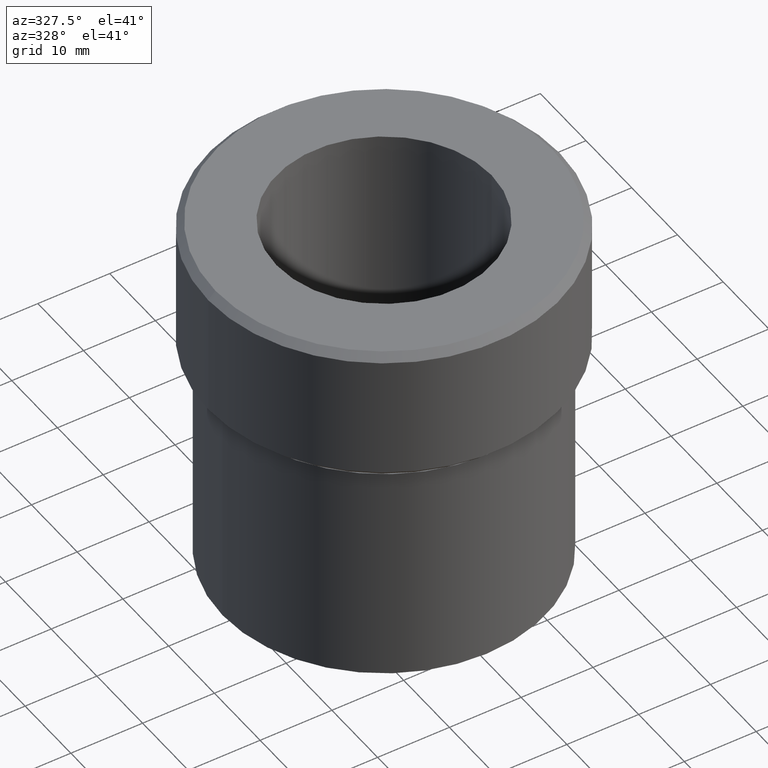
[diagram: clean part render]
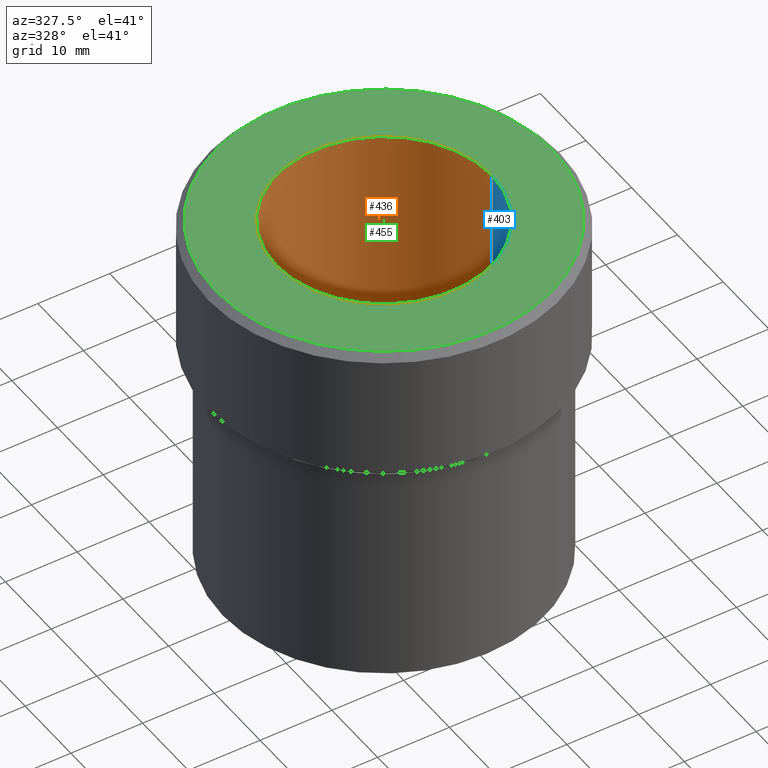
[diagram: same view with three faces highlighted in distinct colors, each labeled with its STEP entity id]
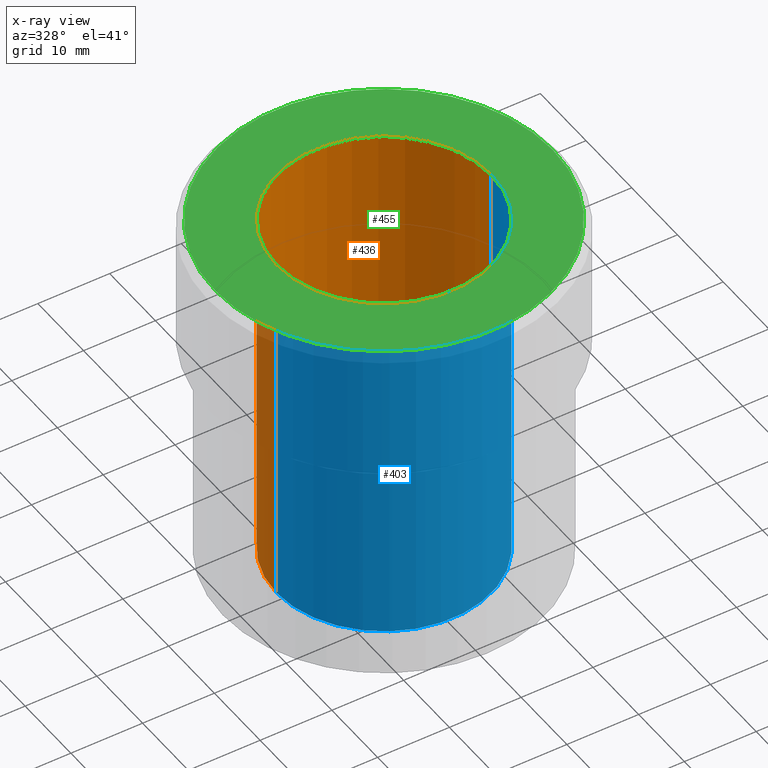
[diagram: x-ray of the same camera — body ghosted, the three highlighted faces saturated]
A machine part, auxiliary view with three faces highlighted in distinct colors.
The next image is the same camera in x-ray (body ghosted, the three faces saturated) — at least one of them is partly hidden behind the body in this view.
Their STEP definitions:

[orange] entity #436 — the highlighted cylindrical surface (partial cylindrical patch) has radius 15 mm, axis along (-0, -0, 1).
#11 = DIRECTION ( 'NONE',  ( -0.000000000000000000, -0.000000000000000000, 1.000000000000000000 ) ) ;
#16 = EDGE_CURVE ( 'NONE', #229, #299, #208, .T. ) ;
#20 = CARTESIAN_POINT ( 'NONE',  ( -15.00000000000000000, 1.836970198721029589E-15, -65.00000000000000000 ) ) ;
#24 = VECTOR ( 'NONE', #344, 1000.000000000000000 ) ;
#47 = AXIS2_PLACEMENT_3D ( 'NONE', #164, #200, #236 ) ;
#92 = CARTESIAN_POINT ( 'NONE',  ( 15.00000000000000000, 0.000000000000000000, 0.000000000000000000 ) ) ;
#100 = VERTEX_POINT ( 'NONE', #196 ) ;
#106 = CYLINDRICAL_SURFACE ( 'NONE', #445, 15.00000000000000000 ) ;
#126 = DIRECTION ( 'NONE',  ( -0.000000000000000000, -0.000000000000000000, 1.000000000000000000 ) ) ;
#157 = ORIENTED_EDGE ( 'NONE', *, *, #494, .F. ) ;
#158 = EDGE_CURVE ( 'NONE', #299, #100, #481, .T. ) ;
#164 = CARTESIAN_POINT ( 'NONE',  ( 0.000000000000000000, 0.000000000000000000, 0.000000000000000000 ) ) ;
#175 = ORIENTED_EDGE ( 'NONE', *, *, #514, .T. ) ;
#196 = CARTESIAN_POINT ( 'NONE',  ( -15.00000000000000000, 1.836970198721029589E-15, 0.000000000000000000 ) ) ;
#200 = DIRECTION ( 'NONE',  ( -0.000000000000000000, -0.000000000000000000, 1.000000000000000000 ) ) ;
#208 = LINE ( 'NONE', #496, #284 ) ;
#229 = VERTEX_POINT ( 'NONE', #488 ) ;
#230 = DIRECTION ( 'NONE',  ( -1.000000000000000000, 0.000000000000000000, 0.000000000000000000 ) ) ;
#236 = DIRECTION ( 'NONE',  ( 1.000000000000000000, 0.000000000000000000, 0.000000000000000000 ) ) ;
#258 = DIRECTION ( 'NONE',  ( 0.000000000000000000, 0.000000000000000000, -1.000000000000000000 ) ) ;
#264 = CARTESIAN_POINT ( 'NONE',  ( 0.000000000000000000, 0.000000000000000000, -51.00000000000000000 ) ) ;
#284 = VECTOR ( 'NONE', #126, 1000.000000000000000 ) ;
#299 = VERTEX_POINT ( 'NONE', #92 ) ;
#303 = VERTEX_POINT ( 'NONE', #339 ) ;
#329 = CIRCLE ( 'NONE', #473, 15.00000000000000000 ) ;
#337 = ORIENTED_EDGE ( 'NONE', *, *, #158, .T. ) ;
#339 = CARTESIAN_POINT ( 'NONE',  ( -15.00000000000000000, 1.836970198721029589E-15, -51.00000000000000000 ) ) ;
#344 = DIRECTION ( 'NONE',  ( -0.000000000000000000, -0.000000000000000000, 1.000000000000000000 ) ) ;
#420 = CARTESIAN_POINT ( 'NONE',  ( 0.000000000000000000, 0.000000000000000000, -65.00000000000000000 ) ) ;
#436 = ADVANCED_FACE ( 'NONE', ( #501 ), #106, .F. ) ;
#437 = LINE ( 'NONE', #20, #24 ) ;
#445 = AXIS2_PLACEMENT_3D ( 'NONE', #420, #11, #505 ) ;
#467 = ORIENTED_EDGE ( 'NONE', *, *, #16, .T. ) ;
#473 = AXIS2_PLACEMENT_3D ( 'NONE', #264, #258, #230 ) ;
#481 = CIRCLE ( 'NONE', #47, 15.00000000000000000 ) ;
#488 = CARTESIAN_POINT ( 'NONE',  ( 15.00000000000000000, 0.000000000000000000, -51.00000000000000000 ) ) ;
#491 = EDGE_LOOP ( 'NONE', ( #157, #175, #467, #337 ) ) ;
#494 = EDGE_CURVE ( 'NONE', #303, #100, #437, .T. ) ;
#496 = CARTESIAN_POINT ( 'NONE',  ( 15.00000000000000000, 0.000000000000000000, -65.00000000000000000 ) ) ;
#501 = FACE_OUTER_BOUND ( 'NONE', #491, .T. ) ;
#505 = DIRECTION ( 'NONE',  ( 1.000000000000000000, 0.000000000000000000, 0.000000000000000000 ) ) ;
#514 = EDGE_CURVE ( 'NONE', #303, #229, #329, .T. ) ;

[blue] entity #403 — the highlighted cylindrical surface (partial cylindrical patch) has radius 15 mm, axis along (-0, -0, 1).
#16 = EDGE_CURVE ( 'NONE', #229, #299, #208, .T. ) ;
#20 = CARTESIAN_POINT ( 'NONE',  ( -15.00000000000000000, 1.836970198721029589E-15, -65.00000000000000000 ) ) ;
#24 = VECTOR ( 'NONE', #344, 1000.000000000000000 ) ;
#55 = CARTESIAN_POINT ( 'NONE',  ( 0.000000000000000000, 0.000000000000000000, -51.00000000000000000 ) ) ;
#62 = DIRECTION ( 'NONE',  ( 1.000000000000000000, 0.000000000000000000, 0.000000000000000000 ) ) ;
#63 = EDGE_LOOP ( 'NONE', ( #384, #105, #107, #396 ) ) ;
#76 = CIRCLE ( 'NONE', #177, 15.00000000000000000 ) ;
#92 = CARTESIAN_POINT ( 'NONE',  ( 15.00000000000000000, 0.000000000000000000, 0.000000000000000000 ) ) ;
#100 = VERTEX_POINT ( 'NONE', #196 ) ;
#105 = ORIENTED_EDGE ( 'NONE', *, *, #494, .T. ) ;
#107 = ORIENTED_EDGE ( 'NONE', *, *, #531, .T. ) ;
#126 = DIRECTION ( 'NONE',  ( -0.000000000000000000, -0.000000000000000000, 1.000000000000000000 ) ) ;
#152 = CARTESIAN_POINT ( 'NONE',  ( 0.000000000000000000, 0.000000000000000000, -65.00000000000000000 ) ) ;
#163 = AXIS2_PLACEMENT_3D ( 'NONE', #152, #269, #390 ) ;
#177 = AXIS2_PLACEMENT_3D ( 'NONE', #55, #220, #432 ) ;
#196 = CARTESIAN_POINT ( 'NONE',  ( -15.00000000000000000, 1.836970198721029589E-15, 0.000000000000000000 ) ) ;
#208 = LINE ( 'NONE', #496, #284 ) ;
#220 = DIRECTION ( 'NONE',  ( 0.000000000000000000, 0.000000000000000000, -1.000000000000000000 ) ) ;
#229 = VERTEX_POINT ( 'NONE', #488 ) ;
#269 = DIRECTION ( 'NONE',  ( -0.000000000000000000, -0.000000000000000000, 1.000000000000000000 ) ) ;
#272 = CARTESIAN_POINT ( 'NONE',  ( 0.000000000000000000, 0.000000000000000000, 0.000000000000000000 ) ) ;
#281 = CIRCLE ( 'NONE', #298, 15.00000000000000000 ) ;
#284 = VECTOR ( 'NONE', #126, 1000.000000000000000 ) ;
#298 = AXIS2_PLACEMENT_3D ( 'NONE', #272, #512, #62 ) ;
#299 = VERTEX_POINT ( 'NONE', #92 ) ;
#303 = VERTEX_POINT ( 'NONE', #339 ) ;
#308 = CYLINDRICAL_SURFACE ( 'NONE', #163, 15.00000000000000000 ) ;
#339 = CARTESIAN_POINT ( 'NONE',  ( -15.00000000000000000, 1.836970198721029589E-15, -51.00000000000000000 ) ) ;
#344 = DIRECTION ( 'NONE',  ( -0.000000000000000000, -0.000000000000000000, 1.000000000000000000 ) ) ;
#352 = FACE_OUTER_BOUND ( 'NONE', #63, .T. ) ;
#384 = ORIENTED_EDGE ( 'NONE', *, *, #475, .T. ) ;
#390 = DIRECTION ( 'NONE',  ( 1.000000000000000000, 0.000000000000000000, 0.000000000000000000 ) ) ;
#396 = ORIENTED_EDGE ( 'NONE', *, *, #16, .F. ) ;
#403 = ADVANCED_FACE ( 'NONE', ( #352 ), #308, .F. ) ;
#432 = DIRECTION ( 'NONE',  ( -1.000000000000000000, 0.000000000000000000, 0.000000000000000000 ) ) ;
#437 = LINE ( 'NONE', #20, #24 ) ;
#475 = EDGE_CURVE ( 'NONE', #229, #303, #76, .T. ) ;
#488 = CARTESIAN_POINT ( 'NONE',  ( 15.00000000000000000, 0.000000000000000000, -51.00000000000000000 ) ) ;
#494 = EDGE_CURVE ( 'NONE', #303, #100, #437, .T. ) ;
#496 = CARTESIAN_POINT ( 'NONE',  ( 15.00000000000000000, 0.000000000000000000, -65.00000000000000000 ) ) ;
#512 = DIRECTION ( 'NONE',  ( -0.000000000000000000, -0.000000000000000000, 1.000000000000000000 ) ) ;
#531 = EDGE_CURVE ( 'NONE', #100, #299, #281, .T. ) ;

[green] entity #455 — the highlighted planar face has unit normal (0, -0, 1).
#29 = DIRECTION ( 'NONE',  ( 1.000000000000000000, 0.000000000000000000, 0.000000000000000000 ) ) ;
#47 = AXIS2_PLACEMENT_3D ( 'NONE', #164, #200, #236 ) ;
#52 = EDGE_CURVE ( 'NONE', #270, #66, #244, .T. ) ;
#57 = EDGE_LOOP ( 'NONE', ( #96, #392 ) ) ;
#62 = DIRECTION ( 'NONE',  ( 1.000000000000000000, 0.000000000000000000, 0.000000000000000000 ) ) ;
#66 = VERTEX_POINT ( 'NONE', #502 ) ;
#79 = CARTESIAN_POINT ( 'NONE',  ( 0.000000000000000000, 0.000000000000000000, 0.000000000000000000 ) ) ;
#88 = CARTESIAN_POINT ( 'NONE',  ( 0.000000000000000000, 0.000000000000000000, 0.000000000000000000 ) ) ;
#92 = CARTESIAN_POINT ( 'NONE',  ( 15.00000000000000000, 0.000000000000000000, 0.000000000000000000 ) ) ;
#96 = ORIENTED_EDGE ( 'NONE', *, *, #52, .T. ) ;
#100 = VERTEX_POINT ( 'NONE', #196 ) ;
#113 = EDGE_CURVE ( 'NONE', #66, #270, #373, .T. ) ;
#145 = CARTESIAN_POINT ( 'NONE',  ( 0.000000000000000000, 0.000000000000000000, 0.000000000000000000 ) ) ;
#158 = EDGE_CURVE ( 'NONE', #299, #100, #481, .T. ) ;
#164 = CARTESIAN_POINT ( 'NONE',  ( 0.000000000000000000, 0.000000000000000000, 0.000000000000000000 ) ) ;
#182 = DIRECTION ( 'NONE',  ( 1.000000000000000000, 0.000000000000000000, 0.000000000000000000 ) ) ;
#187 = FACE_OUTER_BOUND ( 'NONE', #57, .T. ) ;
#196 = CARTESIAN_POINT ( 'NONE',  ( -15.00000000000000000, 1.836970198721029589E-15, 0.000000000000000000 ) ) ;
#197 = DIRECTION ( 'NONE',  ( 1.000000000000000000, 0.000000000000000000, 0.000000000000000000 ) ) ;
#200 = DIRECTION ( 'NONE',  ( -0.000000000000000000, -0.000000000000000000, 1.000000000000000000 ) ) ;
#236 = DIRECTION ( 'NONE',  ( 1.000000000000000000, 0.000000000000000000, 0.000000000000000000 ) ) ;
#244 = CIRCLE ( 'NONE', #427, 23.50000000000000711 ) ;
#261 = EDGE_LOOP ( 'NONE', ( #418, #391 ) ) ;
#270 = VERTEX_POINT ( 'NONE', #456 ) ;
#272 = CARTESIAN_POINT ( 'NONE',  ( 0.000000000000000000, 0.000000000000000000, 0.000000000000000000 ) ) ;
#281 = CIRCLE ( 'NONE', #298, 15.00000000000000000 ) ;
#298 = AXIS2_PLACEMENT_3D ( 'NONE', #272, #512, #62 ) ;
#299 = VERTEX_POINT ( 'NONE', #92 ) ;
#325 = AXIS2_PLACEMENT_3D ( 'NONE', #79, #479, #197 ) ;
#373 = CIRCLE ( 'NONE', #325, 23.50000000000000711 ) ;
#391 = ORIENTED_EDGE ( 'NONE', *, *, #531, .F. ) ;
#392 = ORIENTED_EDGE ( 'NONE', *, *, #113, .T. ) ;
#393 = DIRECTION ( 'NONE',  ( -0.000000000000000000, -0.000000000000000000, 1.000000000000000000 ) ) ;
#418 = ORIENTED_EDGE ( 'NONE', *, *, #158, .F. ) ;
#427 = AXIS2_PLACEMENT_3D ( 'NONE', #88, #393, #29 ) ;
#429 = DIRECTION ( 'NONE',  ( 0.000000000000000000, -0.000000000000000000, 1.000000000000000000 ) ) ;
#455 = ADVANCED_FACE ( 'NONE', ( #461, #187 ), #463, .T. ) ;
#456 = CARTESIAN_POINT ( 'NONE',  ( -23.50000000000000711, 0.000000000000000000, 0.000000000000000000 ) ) ;
#458 = AXIS2_PLACEMENT_3D ( 'NONE', #145, #429, #182 ) ;
#461 = FACE_BOUND ( 'NONE', #261, .T. ) ;
#463 = PLANE ( 'NONE',  #458 ) ;
#479 = DIRECTION ( 'NONE',  ( -0.000000000000000000, -0.000000000000000000, 1.000000000000000000 ) ) ;
#481 = CIRCLE ( 'NONE', #47, 15.00000000000000000 ) ;
#502 = CARTESIAN_POINT ( 'NONE',  ( 23.50000000000000711, 2.939152317953648289E-15, 0.000000000000000000 ) ) ;
#512 = DIRECTION ( 'NONE',  ( -0.000000000000000000, -0.000000000000000000, 1.000000000000000000 ) ) ;
#531 = EDGE_CURVE ( 'NONE', #100, #299, #281, .T. ) ;